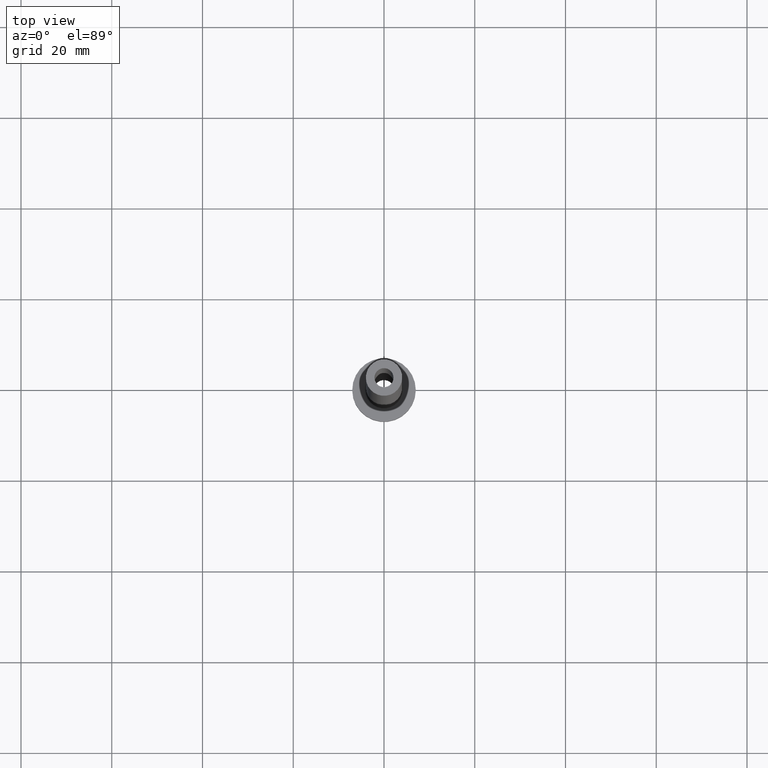
[diagram: clean part render]
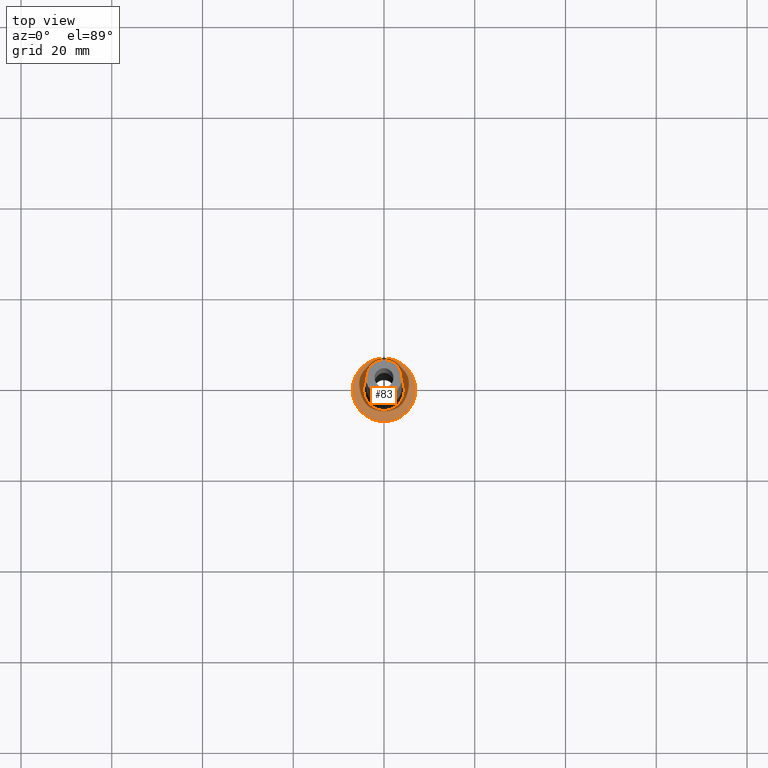
[diagram: same view with one face highlighted and labeled with its STEP entity id]
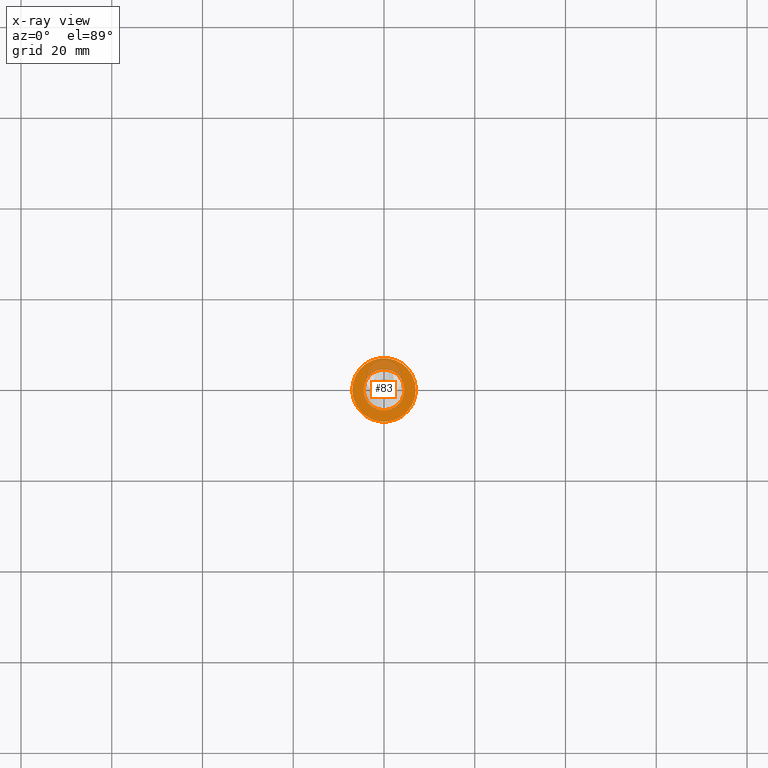
[diagram: x-ray of the same camera — body ghosted, the highlighted face saturated]
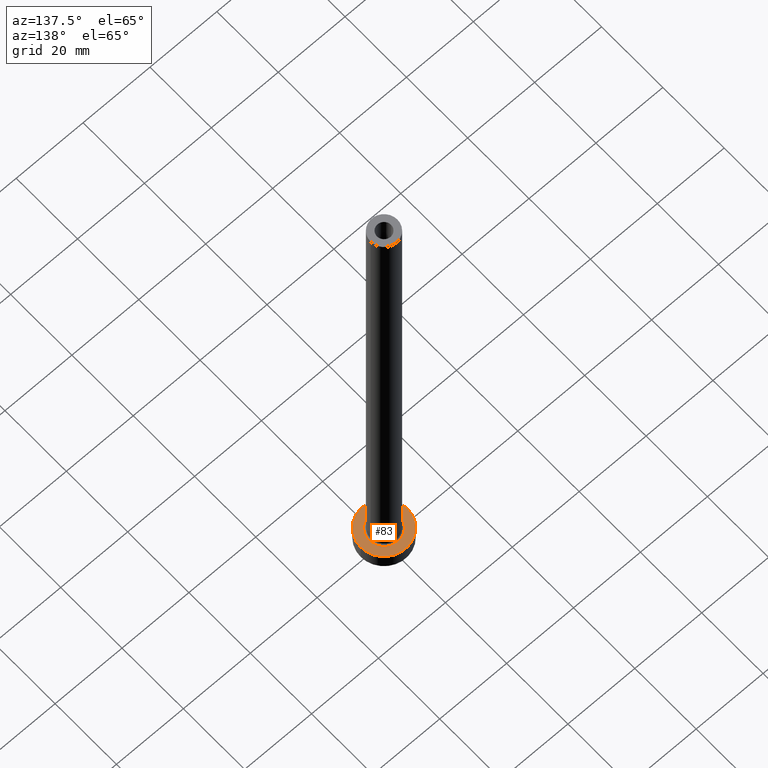
[diagram: same view with one face highlighted and labeled with its STEP entity id]
A machine part, top view. The second image highlights one B-rep face of the part: STEP entity #83.
The next image is the same camera in x-ray: the body ghosted, the highlighted face saturated — about 18% of this face is hidden behind the body in this view.
A second angle (auxiliary view) of the same face is appended — the face is thin or edge-on in the first view.
In plain terms, the highlighted planar face has unit normal (0, 0, 1).
Its self-contained STEP definition (entity closure, byte-faithful):
#4 = EDGE_CURVE ( 'NONE', #60, #161, #90, .T. ) ;
#8 = AXIS2_PLACEMENT_3D ( 'NONE', #96, #85, #56 ) ;
#23 = DIRECTION ( 'NONE',  ( 1.000000000000000000, 0.000000000000000000, 0.000000000000000000 ) ) ;
#25 = DIRECTION ( 'NONE',  ( 1.000000000000000000, 0.000000000000000000, 0.000000000000000000 ) ) ;
#29 = EDGE_CURVE ( 'NONE', #161, #60, #80, .T. ) ;
#32 = CARTESIAN_POINT ( 'NONE',  ( 0.000000000000000000, 0.000000000000000000, 5.000000000000000000 ) ) ;
#56 = DIRECTION ( 'NONE',  ( 1.000000000000000000, 0.000000000000000000, 0.000000000000000000 ) ) ;
#60 = VERTEX_POINT ( 'NONE', #283 ) ;
#70 = AXIS2_PLACEMENT_3D ( 'NONE', #98, #316, #455 ) ;
#72 = EDGE_LOOP ( 'NONE', ( #401, #142 ) ) ;
#78 = ORIENTED_EDGE ( 'NONE', *, *, #103, .T. ) ;
#80 = CIRCLE ( 'NONE', #8, 4.500000000000000888 ) ;
#83 = ADVANCED_FACE ( 'NONE', ( #164, #314 ), #163, .T. ) ;
#85 = DIRECTION ( 'NONE',  ( -0.000000000000000000, -0.000000000000000000, -1.000000000000000000 ) ) ;
#90 = CIRCLE ( 'NONE', #339, 4.500000000000000888 ) ;
#96 = CARTESIAN_POINT ( 'NONE',  ( 0.000000000000000000, 0.000000000000000000, 5.000000000000000000 ) ) ;
#98 = CARTESIAN_POINT ( 'NONE',  ( 0.000000000000000000, 0.000000000000000000, 5.000000000000000000 ) ) ;
#103 = EDGE_CURVE ( 'NONE', #220, #111, #277, .T. ) ;
#111 = VERTEX_POINT ( 'NONE', #242 ) ;
#125 = CARTESIAN_POINT ( 'NONE',  ( 7.000000000000000000, 8.572527594031473190E-16, 5.000000000000000000 ) ) ;
#141 = EDGE_LOOP ( 'NONE', ( #192, #78 ) ) ;
#142 = ORIENTED_EDGE ( 'NONE', *, *, #4, .T. ) ;
#161 = VERTEX_POINT ( 'NONE', #179 ) ;
#163 = PLANE ( 'NONE',  #70 ) ;
#164 = FACE_BOUND ( 'NONE', #72, .T. ) ;
#179 = CARTESIAN_POINT ( 'NONE',  ( 4.500000000000000888, 0.000000000000000000, 5.000000000000002665 ) ) ;
#190 = DIRECTION ( 'NONE',  ( 0.000000000000000000, 0.000000000000000000, 1.000000000000000000 ) ) ;
#191 = AXIS2_PLACEMENT_3D ( 'NONE', #32, #423, #25 ) ;
#192 = ORIENTED_EDGE ( 'NONE', *, *, #249, .T. ) ;
#220 = VERTEX_POINT ( 'NONE', #125 ) ;
#224 = CIRCLE ( 'NONE', #378, 7.000000000000000000 ) ;
#242 = CARTESIAN_POINT ( 'NONE',  ( -7.000000000000000000, 0.000000000000000000, 5.000000000000000000 ) ) ;
#249 = EDGE_CURVE ( 'NONE', #111, #220, #224, .T. ) ;
#277 = CIRCLE ( 'NONE', #191, 7.000000000000000000 ) ;
#283 = CARTESIAN_POINT ( 'NONE',  ( -4.500000000000000888, 5.510910596163088569E-16, 5.000000000000002665 ) ) ;
#295 = DIRECTION ( 'NONE',  ( 1.000000000000000000, 0.000000000000000000, 0.000000000000000000 ) ) ;
#304 = DIRECTION ( 'NONE',  ( -0.000000000000000000, -0.000000000000000000, -1.000000000000000000 ) ) ;
#314 = FACE_OUTER_BOUND ( 'NONE', #141, .T. ) ;
#316 = DIRECTION ( 'NONE',  ( 0.000000000000000000, 0.000000000000000000, 1.000000000000000000 ) ) ;
#339 = AXIS2_PLACEMENT_3D ( 'NONE', #452, #304, #23 ) ;
#378 = AXIS2_PLACEMENT_3D ( 'NONE', #449, #190, #295 ) ;
#401 = ORIENTED_EDGE ( 'NONE', *, *, #29, .T. ) ;
#423 = DIRECTION ( 'NONE',  ( 0.000000000000000000, 0.000000000000000000, 1.000000000000000000 ) ) ;
#449 = CARTESIAN_POINT ( 'NONE',  ( 0.000000000000000000, 0.000000000000000000, 5.000000000000000000 ) ) ;
#452 = CARTESIAN_POINT ( 'NONE',  ( 0.000000000000000000, 0.000000000000000000, 5.000000000000000000 ) ) ;
#455 = DIRECTION ( 'NONE',  ( 1.000000000000000000, 0.000000000000000000, -0.000000000000000000 ) ) ;